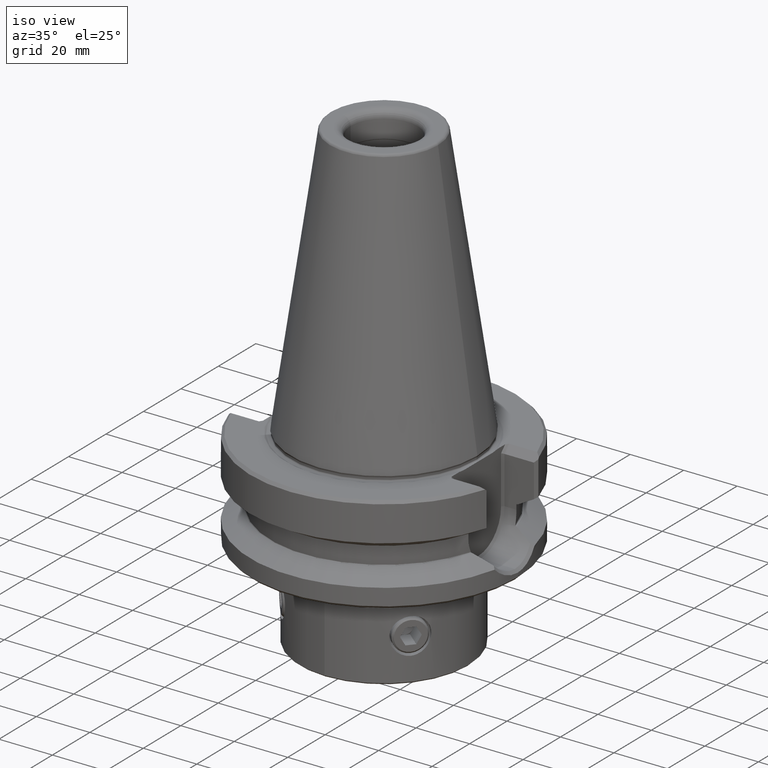
[diagram: clean part render]
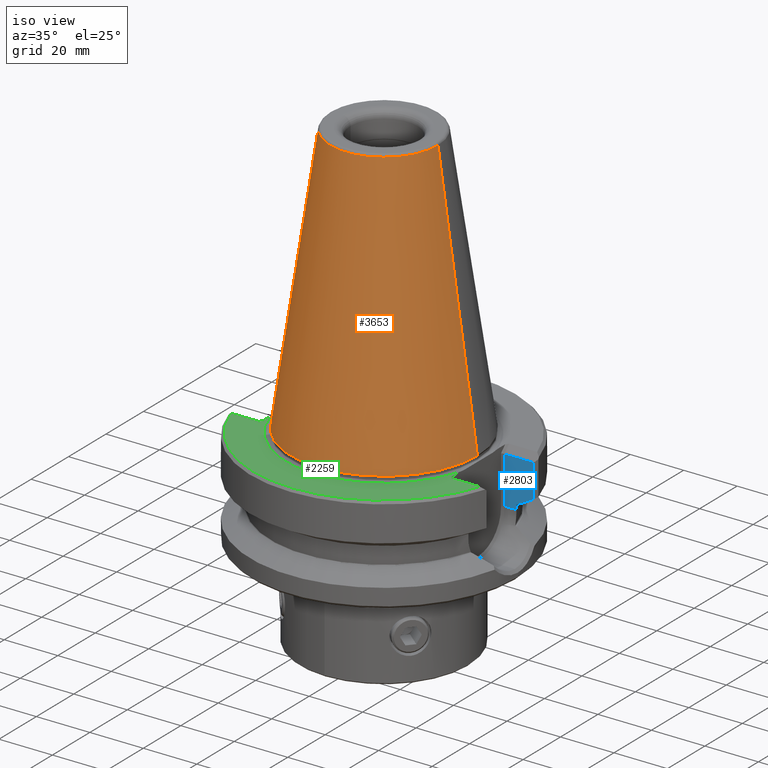
[diagram: same view with three faces highlighted in distinct colors, each labeled with its STEP entity id]
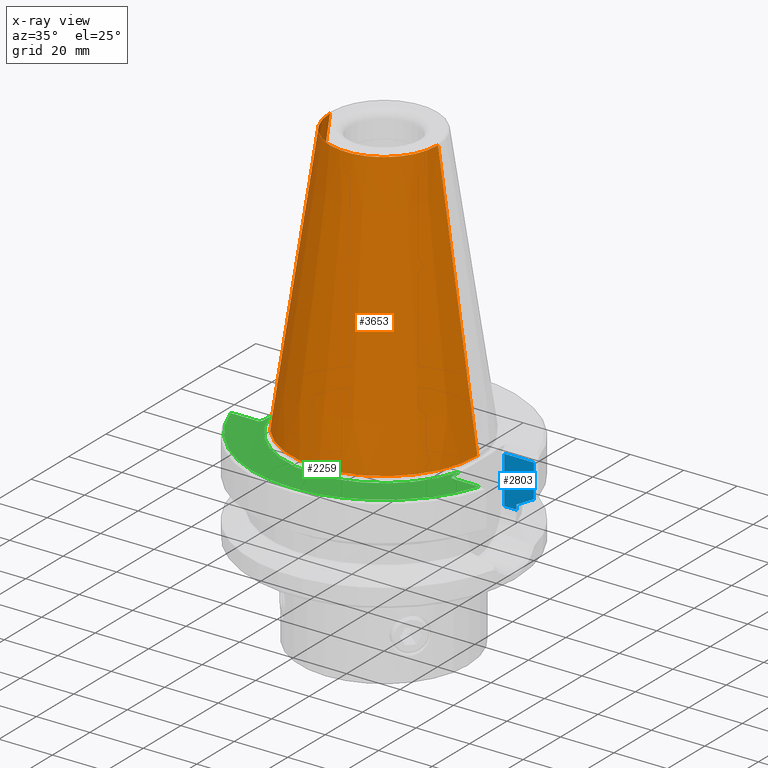
[diagram: x-ray of the same camera — body ghosted, the three highlighted faces saturated]
A machine part, iso view with three faces highlighted in distinct colors.
The next image is the same camera in x-ray (body ghosted, the three faces saturated) — at least one of them is partly hidden behind the body in this view.
Their STEP definitions:

[orange] entity #3653 — the highlighted conical surface has half-angle 8.297 deg.
#1555=EDGE_CURVE('NONE',#2123,#3399,#4043,.T.);
#1603=EDGE_CURVE('NONE',#3399,#3275,#4094,.F.);
#1783=VERTEX_POINT('NONE',#4301);
#2047=EDGE_CURVE('NONE',#1783,#2123,#4593,.T.);
#2123=VERTEX_POINT('NONE',#4676);
#2771=EDGE_CURVE('NONE',#1783,#3275,#5400,.T.);
#3275=VERTEX_POINT('NONE',#5961);
#3399=VERTEX_POINT('NONE',#6098);
#3653=ADVANCED_FACE('NONE',(#6377),#6378,.T.);
#4043=LINE('',#6973,#6974);
#4094=CIRCLE('',#7064,34.925);
#4301=CARTESIAN_POINT('',(20.198847610122,1.26122084298849E-014,100.978377218042));
#4593=CIRCLE('',#7997,20.198847610122);
#4676=CARTESIAN_POINT('',(-20.198847610122,1.01385630226648E-014,100.978377218042));
#5400=LINE('',#9561,#9562);
#5961=CARTESIAN_POINT('',(34.925,5.38104826461794E-031,4.84681739187922E-016));
#6098=CARTESIAN_POINT('',(-34.925,-4.27707894602213E-015,-4.84681739187922E-016));
#6377=FACE_OUTER_BOUND('',#11366,.T.);
#6378=CONICAL_SURFACE('',#11367,19.1019339306011,0.144813846547412);
#6973=CARTESIAN_POINT('',(-19.1019339306011,1.12123475697673E-014,108.5));
#6974=VECTOR('',#11817,1000.0);
#7064=AXIS2_PLACEMENT_3D('',#11863,#11864,#11865);
#7997=AXIS2_PLACEMENT_3D('',#12494,#12495,#12496);
#9561=CARTESIAN_POINT('',(19.1019339306011,1.35516597943308E-014,108.5));
#9562=VECTOR('',#13489,1000.0);
#11366=EDGE_LOOP('',(#14594,#14595,#14596,#14597));
#11367=AXIS2_PLACEMENT_3D('',#14598,#14599,#14600);
#11817=DIRECTION('',(-0.1443082272673,-1.41265395219677E-016,-0.989532786492176));
#11863=CARTESIAN_POINT('',(0.0,0.0,0.0));
#11864=DIRECTION('',(1.38777878078145E-017,-1.2490009027033E-016,-1.0));
#11865=DIRECTION('',(1.0,1.54074395550979E-032,1.38777878078145E-017));
#12494=CARTESIAN_POINT('',(-1.40135649220943E-015,1.26122084298849E-014,100.978377218042));
#12495=DIRECTION('',(1.38777878078145E-017,-1.2490009027033E-016,-1.0));
#12496=DIRECTION('',(1.0,1.54074395550979E-032,1.38777878078145E-017));
#13489=DIRECTION('',(0.1443082272673,-1.23592734358324E-016,-0.989532786492176));
#14594=ORIENTED_EDGE('',*,*,#2047,.T.);
#14595=ORIENTED_EDGE('',*,*,#1555,.T.);
#14596=ORIENTED_EDGE('',*,*,#1603,.T.);
#14597=ORIENTED_EDGE('',*,*,#2771,.F.);
#14598=CARTESIAN_POINT('',(-1.50573997714787E-015,1.35516597943308E-014,108.5));
#14599=DIRECTION('',(1.38777878078145E-017,-1.2490009027033E-016,-1.0));
#14600=DIRECTION('',(1.0,1.54074395550979E-032,1.38777878078145E-017));

[blue] entity #2803 — the highlighted planar face has unit normal (-0, 1, -0).
#1425=VERTEX_POINT('NONE',#3901);
#1479=VERTEX_POINT('NONE',#3961);
#1779=VERTEX_POINT('NONE',#4297);
#1819=EDGE_CURVE('NONE',#1967,#1479,#4340,.F.);
#1967=VERTEX_POINT('NONE',#4501);
#2205=EDGE_CURVE('NONE',#2617,#1425,#4770,.F.);
#2269=EDGE_CURVE('NONE',#3065,#2617,#4838,.F.);
#2449=EDGE_CURVE('NONE',#3065,#2643,#5041,.T.);
#2485=EDGE_CURVE('NONE',#2643,#1479,#5081,.T.);
#2559=VERTEX_POINT('NONE',#5163);
#2617=VERTEX_POINT('NONE',#5225);
#2643=VERTEX_POINT('NONE',#5256);
#2803=ADVANCED_FACE('NONE',(#5437),#5438,.F.);
#3065=VERTEX_POINT('NONE',#5727);
#3107=EDGE_CURVE('NONE',#2559,#1425,#5776,.F.);
#3127=EDGE_CURVE('NONE',#1967,#1779,#5798,.T.);
#3491=EDGE_CURVE('NONE',#1779,#2559,#6197,.F.);
#3901=CARTESIAN_POINT('',(41.0661743269521,12.85,-19.7));
#3961=CARTESIAN_POINT('',(36.05,12.85,-21.65));
#4297=CARTESIAN_POINT('',(40.5108318848182,12.85,-20.0));
#4340=LINE('',#7452,#7453);
#4501=CARTESIAN_POINT('',(40.5108318848182,12.85,-21.65));
#4770=(B_SPLINE_CURVE(2,(#8285,#8286,#8287),.UNSPECIFIED.,.F.,.F.)B_SPLINE_CURVE_WITH_KNOTS((3,3),(2.86218419572995,9.6799383987904),.UNSPECIFIED.)RATIONAL_B_SPLINE_CURVE((1.00241204372691,1.0043899571009,1.00210481420314))BOUNDED_CURVE()REPRESENTATION_ITEM('')GEOMETRIC_REPRESENTATION_ITEM()CURVE());
#4838=LINE('',#8471,#8472);
#5041=LINE('',#8915,#8916);
#5081=LINE('',#9056,#9057);
#5163=CARTESIAN_POINT('',(40.8254516202822,12.85,-19.7));
#5225=CARTESIAN_POINT('',(47.0434959177618,12.85,-16.3875985974684));
#5256=CARTESIAN_POINT('',(36.05,12.85,-4.0));
#5437=FACE_OUTER_BOUND('',#9608,.T.);
#5438=PLANE('',#9609);
#5727=CARTESIAN_POINT('',(47.0434959177618,12.85,-4.0));
#5776=LINE('',#10170,#10171);
#5798=LINE('',#10270,#10271);
#6197=B_SPLINE_CURVE_WITH_KNOTS('',3,(#11048,#11049,#11050,#11051,#11052,#11053,#11054,#11055,#11056,#11057),.UNSPECIFIED.,.F.,.F.,(4,2,2,2,4),(0.45502569821162,0.573248806370167,0.688698456890841,0.800808710961338,0.91019126391572),.UNSPECIFIED.);
#7452=CARTESIAN_POINT('',(62.5,12.85,-21.65));
#7453=VECTOR('',#12190,1.0);
#8285=CARTESIAN_POINT('',(41.0661743269521,12.85,-19.7));
#8286=CARTESIAN_POINT('',(43.8680451306184,12.85,-18.1561552317756));
#8287=CARTESIAN_POINT('',(47.0434959177616,12.85,-16.3875985974686));
#8471=CARTESIAN_POINT('',(47.0434959177618,12.85,8.0));
#8472=VECTOR('',#12806,1.0);
#8915=CARTESIAN_POINT('',(62.5,12.85,-4.0));
#8916=VECTOR('',#13061,1.0);
#9056=CARTESIAN_POINT('',(36.05,12.85,-4.0));
#9057=VECTOR('',#13112,1.0);
#9608=EDGE_LOOP('',(#13551,#13552,#13553,#13554,#13555,#13556,#13557,#13558));
#9609=AXIS2_PLACEMENT_3D('',#13559,#13560,#13561);
#10170=CARTESIAN_POINT('',(31.25,12.85,-19.7));
#10171=VECTOR('',#13954,1.0);
#10270=CARTESIAN_POINT('',(40.5108318848182,12.85,-1.11805243001558E-015));
#10271=VECTOR('',#13978,1.0);
#11048=CARTESIAN_POINT('',(40.8254516202822,12.85,-19.7));
#11049=CARTESIAN_POINT('',(40.7860439175627,12.85,-19.7));
#11050=CARTESIAN_POINT('',(40.7396036374895,12.85,-19.7089203651919));
#11051=CARTESIAN_POINT('',(40.6673543378167,12.85,-19.738024214536));
#11052=CARTESIAN_POINT('',(40.6285401723947,12.85,-19.7630450069185));
#11053=CARTESIAN_POINT('',(40.5741305417365,12.85,-19.8158968322862));
#11054=CARTESIAN_POINT('',(40.5485951997184,12.85,-19.8527606324005));
#11055=CARTESIAN_POINT('',(40.519663216159,12.85,-19.9206866759328));
#11056=CARTESIAN_POINT('',(40.5108318848182,12.85,-19.9635391490152));
#11057=CARTESIAN_POINT('',(40.5108318848182,12.85,-20.0));
#12190=DIRECTION('',(1.0,1.54074395550979E-032,1.38777878078144E-017));
#12806=DIRECTION('',(-1.38777878078144E-017,1.2490009027033E-016,1.0));
#13061=DIRECTION('',(-1.0,-1.54074395550979E-032,-1.38777878078145E-017));
#13112=DIRECTION('',(1.38777878078144E-017,-1.2490009027033E-016,-1.0));
#13551=ORIENTED_EDGE('',*,*,#2205,.F.);
#13552=ORIENTED_EDGE('',*,*,#2269,.F.);
#13553=ORIENTED_EDGE('',*,*,#2449,.T.);
#13554=ORIENTED_EDGE('',*,*,#2485,.T.);
#13555=ORIENTED_EDGE('',*,*,#1819,.F.);
#13556=ORIENTED_EDGE('',*,*,#3127,.T.);
#13557=ORIENTED_EDGE('',*,*,#3491,.T.);
#13558=ORIENTED_EDGE('',*,*,#3107,.T.);
#13559=CARTESIAN_POINT('',(62.5,12.85,-4.0));
#13560=DIRECTION('',(-1.36741026051494E-032,1.0,-1.2490009027033E-016));
#13561=DIRECTION('',(1.0,1.54074395550979E-032,1.38777878078144E-017));
#13954=DIRECTION('',(-1.0,-1.54074395550979E-032,-1.38777878078145E-017));
#13978=DIRECTION('',(-1.38777878078145E-017,1.2490009027033E-016,1.0));

[green] entity #2259 — the highlighted planar face has unit normal (0, -0, -1).
#1417=VERTEX_POINT('NONE',#3893);
#1483=VERTEX_POINT('NONE',#3965);
#1753=EDGE_CURVE('NONE',#3067,#2963,#4269,.F.);
#2111=EDGE_CURVE('NONE',#3117,#2963,#4664,.T.);
#2199=VERTEX_POINT('NONE',#4763);
#2259=ADVANCED_FACE('NONE',(#4827),#4828,.F.);
#2295=EDGE_CURVE('NONE',#1417,#1483,#4865,.F.);
#2625=EDGE_CURVE('NONE',#3241,#3117,#5234,.F.);
#2663=EDGE_CURVE('NONE',#2893,#2199,#5278,.F.);
#2703=EDGE_CURVE('NONE',#3067,#2893,#5323,.T.);
#2845=EDGE_CURVE('NONE',#3241,#1417,#5483,.T.);
#2893=VERTEX_POINT('NONE',#5539);
#2963=VERTEX_POINT('NONE',#5619);
#3067=VERTEX_POINT('NONE',#5729);
#3117=VERTEX_POINT('NONE',#5788);
#3241=VERTEX_POINT('NONE',#5926);
#3295=EDGE_CURVE('NONE',#1483,#2199,#5981,.T.);
#3893=CARTESIAN_POINT('',(35.3,-14.2893398282202,-1.49999999999999));
#3965=CARTESIAN_POINT('',(36.05,-15.35,-1.49999999999999));
#4269=LINE('',#7333,#7334);
#4664=LINE('',#8099,#8100);
#4763=CARTESIAN_POINT('',(46.5336168807025,-15.35,-1.49999999999999));
#4827=FACE_OUTER_BOUND('',#8412,.T.);
#4828=PLANE('',#8413);
#4865=LINE('',#8506,#8507);
#5234=CIRCLE('',#9300,36.7855493079491);
#5278=CIRCLE('',#9353,49.0);
#5323=LINE('',#9448,#9449);
#5483=LINE('',#9666,#9667);
#5539=CARTESIAN_POINT('',(-46.5336168807025,-15.35,-1.49999999999999));
#5619=CARTESIAN_POINT('',(-35.3,-14.2893398282202,-1.49999999999999));
#5729=CARTESIAN_POINT('',(-36.05,-15.35,-1.49999999999999));
#5788=CARTESIAN_POINT('',(-35.3,-10.3482673857777,-1.5));
#5926=CARTESIAN_POINT('',(35.3,-10.3482673857778,-1.49999999999999));
#5981=LINE('',#10602,#10603);
#7333=CARTESIAN_POINT('',(-34.9535461693285,-13.7993801221484,-1.49999999999999));
#7334=VECTOR('',#12114,0.999999999999999);
#8099=CARTESIAN_POINT('',(-35.3,-27.5,-1.49999999999999));
#8100=VECTOR('',#12582,1.0);
#8412=EDGE_LOOP('',(#12790,#12791,#12792,#12793,#12794,#12795,#12796,#12797));
#8413=AXIS2_PLACEMENT_3D('',#12798,#12799,#12800);
#8506=CARTESIAN_POINT('',(38.7980056403601,-19.236266846075,-1.49999999999999));
#8507=VECTOR('',#12823,1.0);
#9300=AXIS2_PLACEMENT_3D('',#13279,#13280,#13281);
#9353=AXIS2_PLACEMENT_3D('',#13336,#13337,#13338);
#9448=CARTESIAN_POINT('',(-30.85,-15.35,-1.49999999999999));
#9449=VECTOR('',#13395,1.0);
#9666=CARTESIAN_POINT('',(35.3,-27.5,-1.49999999999999));
#9667=VECTOR('',#13603,1.0);
#10602=CARTESIAN_POINT('',(31.25,-15.35,-1.49999999999999));
#10603=VECTOR('',#14168,1.0);
#12114=DIRECTION('',(-0.577350269189623,-0.816496580927728,9.3968152136691E-017));
#12582=DIRECTION('',(1.36741026051494E-032,-1.0,1.2490009027033E-016));
#12790=ORIENTED_EDGE('',*,*,#2703,.T.);
#12791=ORIENTED_EDGE('',*,*,#2663,.T.);
#12792=ORIENTED_EDGE('',*,*,#3295,.F.);
#12793=ORIENTED_EDGE('',*,*,#2295,.F.);
#12794=ORIENTED_EDGE('',*,*,#2845,.F.);
#12795=ORIENTED_EDGE('',*,*,#2625,.T.);
#12796=ORIENTED_EDGE('',*,*,#2111,.T.);
#12797=ORIENTED_EDGE('',*,*,#1753,.F.);
#12798=CARTESIAN_POINT('',(2.08166817117223E-017,-55.0,-1.49999999999998));
#12799=DIRECTION('',(1.38777878078145E-017,-1.2490009027033E-016,-1.0));
#12800=DIRECTION('',(1.36741026051494E-032,-1.0,1.2490009027033E-016));
#12823=DIRECTION('',(-0.577350269189627,0.816496580927726,-1.09992841189887E-016));
#13279=CARTESIAN_POINT('',(2.08166817117216E-017,-1.87350135405494E-016,-1.49999999999999));
#13280=DIRECTION('',(-1.38777878078145E-017,1.2490009027033E-016,1.0));
#13281=DIRECTION('',(-1.0,-1.54074395550979E-032,-1.38777878078145E-017));
#13336=CARTESIAN_POINT('',(2.08166817117216E-017,-1.87350135405494E-016,-1.49999999999999));
#13337=DIRECTION('',(1.38777878078145E-017,-1.2490009027033E-016,-1.0));
#13338=DIRECTION('',(1.0,1.54074395550979E-032,1.38777878078145E-017));
#13395=DIRECTION('',(-1.0,-1.52525869861842E-032,-1.38777878078145E-017));
#13603=DIRECTION('',(1.36741026051494E-032,-1.0,1.2490009027033E-016));
#14168=DIRECTION('',(1.0,1.52525869861842E-032,1.38777878078145E-017));